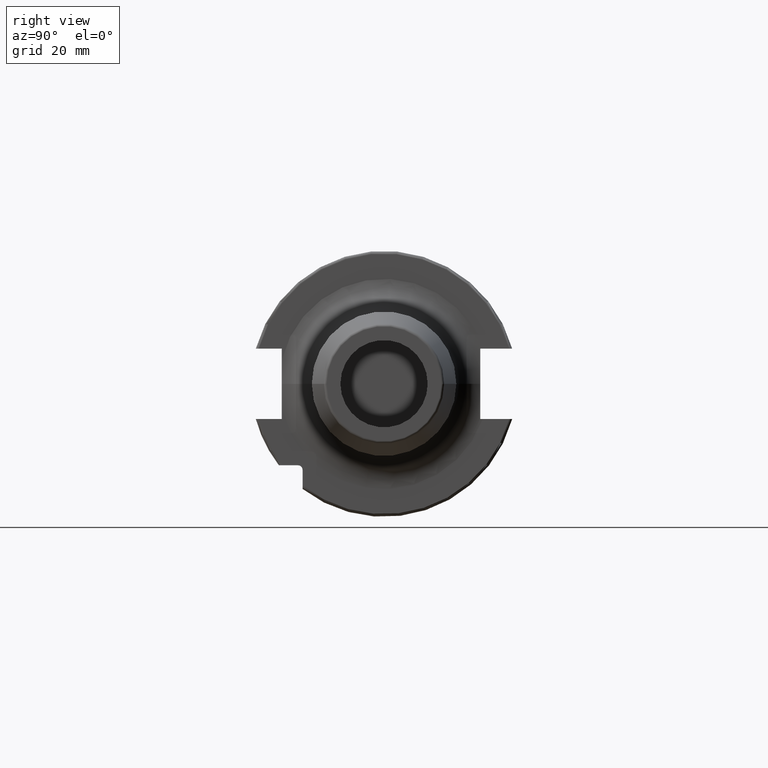
[diagram: clean part render]
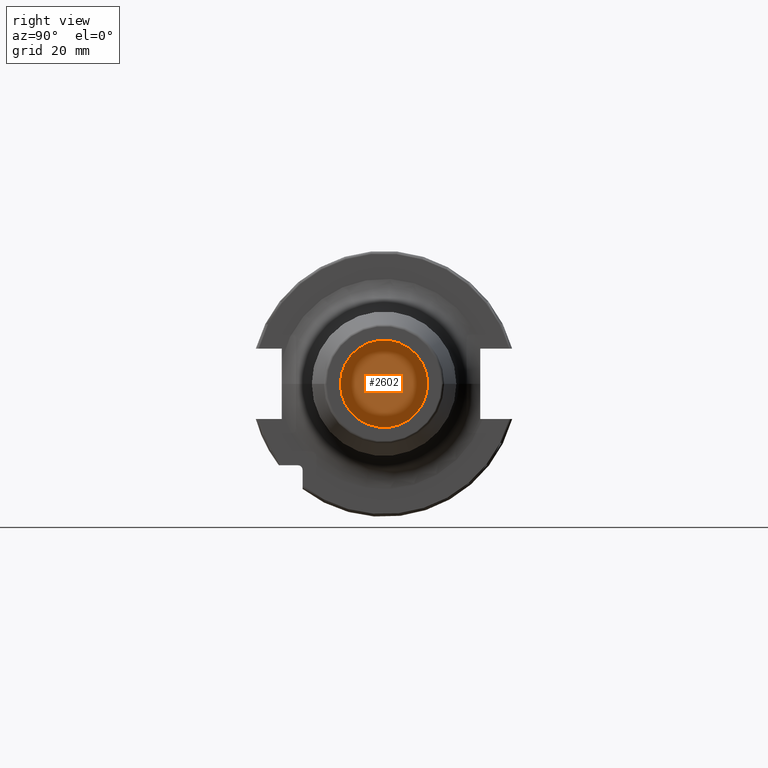
[diagram: same view with one face highlighted and labeled with its STEP entity id]
A machine part, right view. The second image highlights one B-rep face of the part: STEP entity #2602.
In plain terms, the highlighted planar face has unit normal (-1, 0, 0).
Its self-contained STEP definition (entity closure, byte-faithful):
#1036=CARTESIAN_POINT('',(7.2E1,0.E0,0.E0));
#1037=DIRECTION('',(-1.E0,0.E0,0.E0));
#1038=DIRECTION('',(0.E0,-1.E0,0.E0));
#1039=AXIS2_PLACEMENT_3D('',#1036,#1037,#1038);
#1041=CARTESIAN_POINT('',(7.2E1,0.E0,0.E0));
#1042=DIRECTION('',(-1.E0,0.E0,0.E0));
#1043=DIRECTION('',(0.E0,1.E0,0.E0));
#1044=AXIS2_PLACEMENT_3D('',#1041,#1042,#1043);
#1496=CARTESIAN_POINT('',(7.2E1,-1.6E1,0.E0));
#1497=CARTESIAN_POINT('',(7.2E1,1.6E1,0.E0));
#1498=VERTEX_POINT('',#1496);
#1499=VERTEX_POINT('',#1497);
#2593=CARTESIAN_POINT('',(7.2E1,0.E0,0.E0));
#2594=DIRECTION('',(-1.E0,0.E0,0.E0));
#2595=DIRECTION('',(0.E0,-1.E0,0.E0));
#2596=AXIS2_PLACEMENT_3D('',#2593,#2594,#2595);
#2597=PLANE('',#2596);
#2598=ORIENTED_EDGE('',*,*,#2573,.T.);
#2599=ORIENTED_EDGE('',*,*,#2587,.T.);
#2600=EDGE_LOOP('',(#2598,#2599));
#2601=FACE_OUTER_BOUND('',#2600,.F.);
#2602=ADVANCED_FACE('',(#2601),#2597,.F.);
#1040=CIRCLE('',#1039,1.6E1);
#1045=CIRCLE('',#1044,1.6E1);
#2573=EDGE_CURVE('',#1498,#1499,#1040,.T.);
#2587=EDGE_CURVE('',#1499,#1498,#1045,.T.);